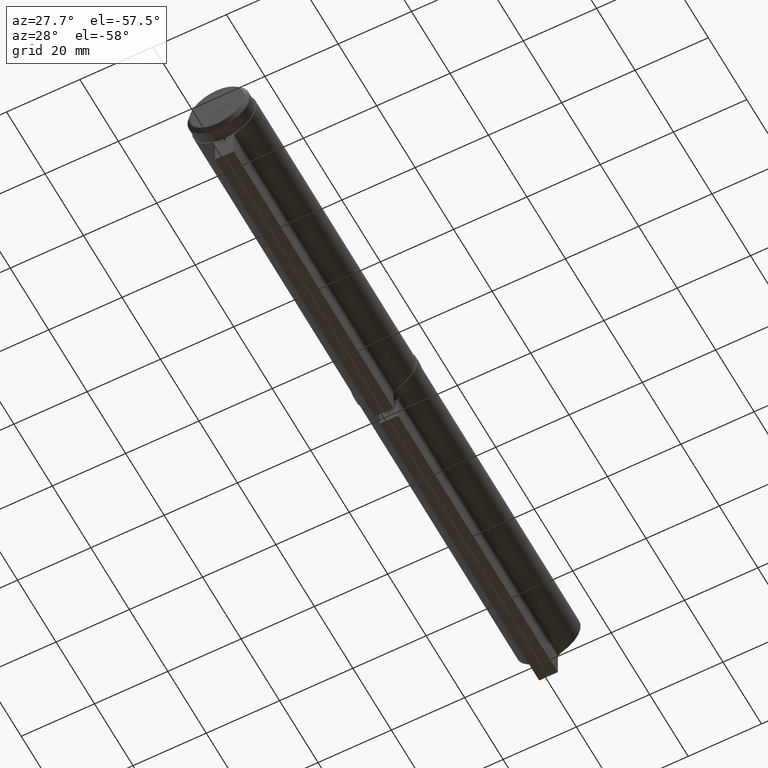
[diagram: clean part render]
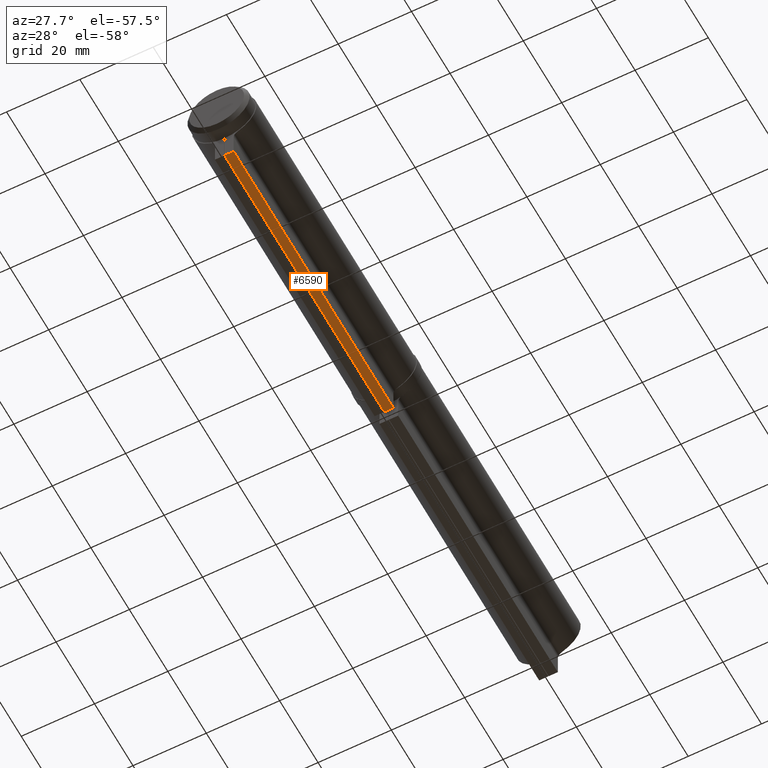
[diagram: same view with one face highlighted and labeled with its STEP entity id]
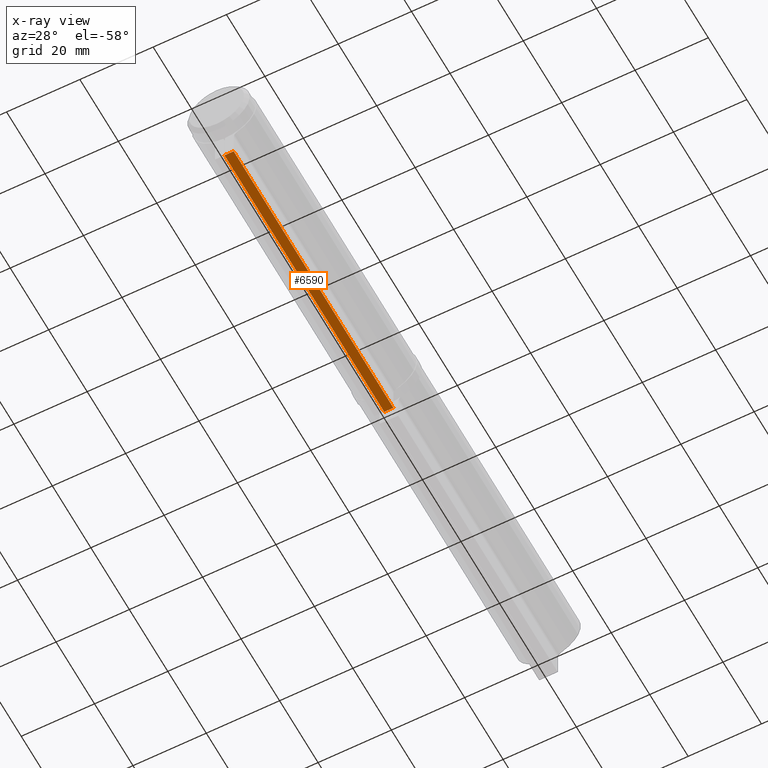
[diagram: x-ray of the same camera — body ghosted, the highlighted face saturated]
A machine part, auxiliary view. The second image highlights one B-rep face of the part: STEP entity #6590.
The next image is the same camera in x-ray: the body ghosted, the highlighted face saturated — about 0% of this face is hidden behind the body in this view.
In plain terms, the highlighted planar face has unit normal (0, 0, 1).
Its self-contained STEP definition (entity closure, byte-faithful):
#531 = LINE ( 'NONE', #11687, #5954 ) ;
#738 = LINE ( 'NONE', #5725, #10954 ) ;
#744 = EDGE_CURVE ( 'NONE', #10436, #4207, #738, .T. ) ;
#993 = VERTEX_POINT ( 'NONE', #9285 ) ;
#1329 = VECTOR ( 'NONE', #5918, 1000.000000000000000 ) ;
#1509 = VECTOR ( 'NONE', #4803, 1000.000000000000000 ) ;
#1765 = DIRECTION ( 'NONE',  ( 1.000000000000000000, 0.000000000000000000, -0.000000000000000000 ) ) ;
#3170 = EDGE_CURVE ( 'NONE', #5520, #993, #6965, .T. ) ;
#3400 = ORIENTED_EDGE ( 'NONE', *, *, #8401, .F. ) ;
#3499 = ORIENTED_EDGE ( 'NONE', *, *, #12105, .T. ) ;
#3717 = PLANE ( 'NONE',  #7756 ) ;
#4207 = VERTEX_POINT ( 'NONE', #6081 ) ;
#4735 = ORIENTED_EDGE ( 'NONE', *, *, #744, .T. ) ;
#4803 = DIRECTION ( 'NONE',  ( -0.000000000000000000, -1.000000000000000000, -0.000000000000000000 ) ) ;
#5520 = VERTEX_POINT ( 'NONE', #9650 ) ;
#5725 = CARTESIAN_POINT ( 'NONE',  ( 2.550000000000000711, 41.50000000000000000, -16.19999999999999929 ) ) ;
#5827 = CARTESIAN_POINT ( 'NONE',  ( 2.550000000000000711, -41.50000000000000000, -16.19999999999999929 ) ) ;
#5918 = DIRECTION ( 'NONE',  ( -1.000000000000000000, 0.000000000000000000, 0.000000000000000000 ) ) ;
#5954 = VECTOR ( 'NONE', #11644, 1000.000000000000000 ) ;
#6081 = CARTESIAN_POINT ( 'NONE',  ( 2.550000000000000711, -41.50000000000000000, -16.19999999999999929 ) ) ;
#6590 = ADVANCED_FACE ( 'NONE', ( #7310 ), #3717, .F. ) ;
#6876 = DIRECTION ( 'NONE',  ( 0.000000000000000000, -0.000000000000000000, 1.000000000000000000 ) ) ;
#6965 = LINE ( 'NONE', #10074, #1509 ) ;
#7310 = FACE_OUTER_BOUND ( 'NONE', #10650, .T. ) ;
#7756 = AXIS2_PLACEMENT_3D ( 'NONE', #11071, #6876, #1765 ) ;
#8325 = CARTESIAN_POINT ( 'NONE',  ( 2.550000000000000711, 41.50000000000000000, -16.19999999999999929 ) ) ;
#8380 = ORIENTED_EDGE ( 'NONE', *, *, #3170, .F. ) ;
#8401 = EDGE_CURVE ( 'NONE', #10436, #5520, #531, .T. ) ;
#9285 = CARTESIAN_POINT ( 'NONE',  ( 0.05000000000000035666, -41.50000000000000000, -16.19999999999999929 ) ) ;
#9650 = CARTESIAN_POINT ( 'NONE',  ( 0.05000000000000035666, 41.50000000000000000, -16.19999999999999929 ) ) ;
#9740 = LINE ( 'NONE', #5827, #1329 ) ;
#10074 = CARTESIAN_POINT ( 'NONE',  ( 0.05000000000000035666, 41.50000000000000000, -16.19999999999999929 ) ) ;
#10436 = VERTEX_POINT ( 'NONE', #8325 ) ;
#10650 = EDGE_LOOP ( 'NONE', ( #3499, #8380, #3400, #4735 ) ) ;
#10954 = VECTOR ( 'NONE', #11962, 1000.000000000000000 ) ;
#11071 = CARTESIAN_POINT ( 'NONE',  ( 2.550000000000000711, 41.50000000000000000, -16.19999999999999929 ) ) ;
#11644 = DIRECTION ( 'NONE',  ( -1.000000000000000000, 0.000000000000000000, 0.000000000000000000 ) ) ;
#11687 = CARTESIAN_POINT ( 'NONE',  ( 2.550000000000000711, 41.50000000000000000, -16.19999999999999929 ) ) ;
#11962 = DIRECTION ( 'NONE',  ( -0.000000000000000000, -1.000000000000000000, -0.000000000000000000 ) ) ;
#12105 = EDGE_CURVE ( 'NONE', #4207, #993, #9740, .T. ) ;